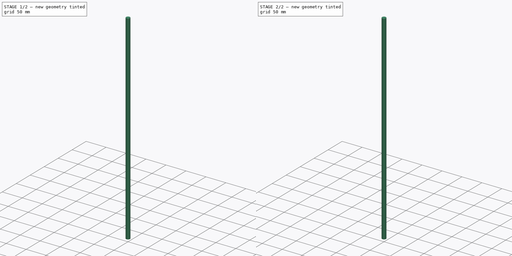
[diagram: build sequence overview — one tinted view per stage of 2, left to right]
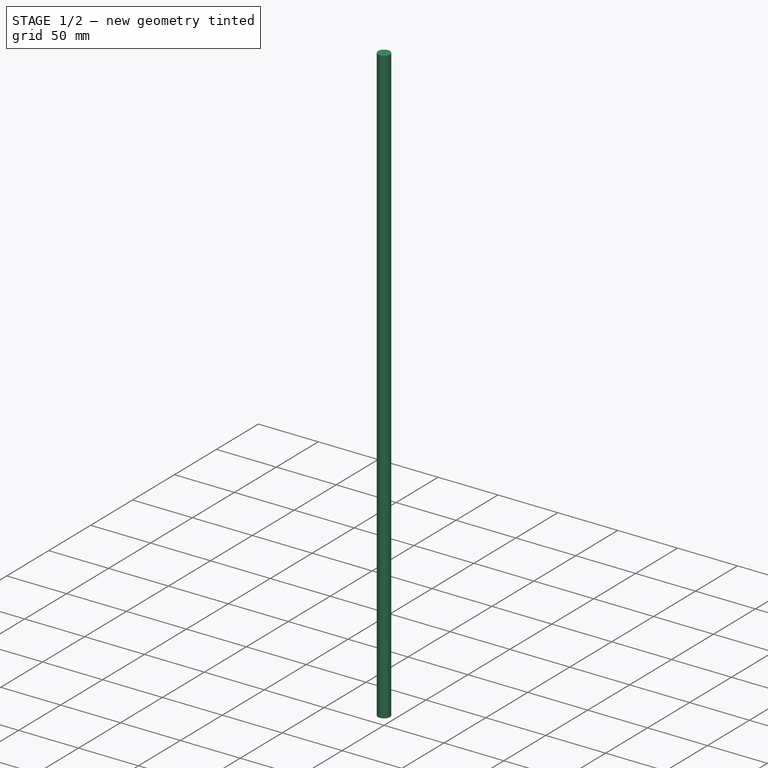
[diagram: stage 1 of 2 — iso view after this stage's code; geometry added in this stage tinted green]
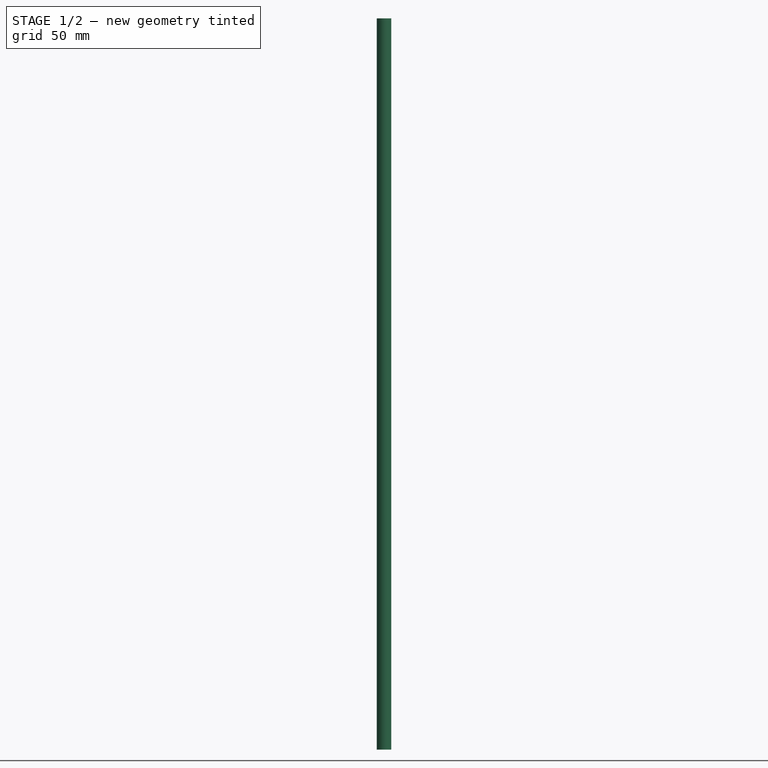
[diagram: stage 1 of 2 — front view after this stage's code; geometry added in this stage tinted green]
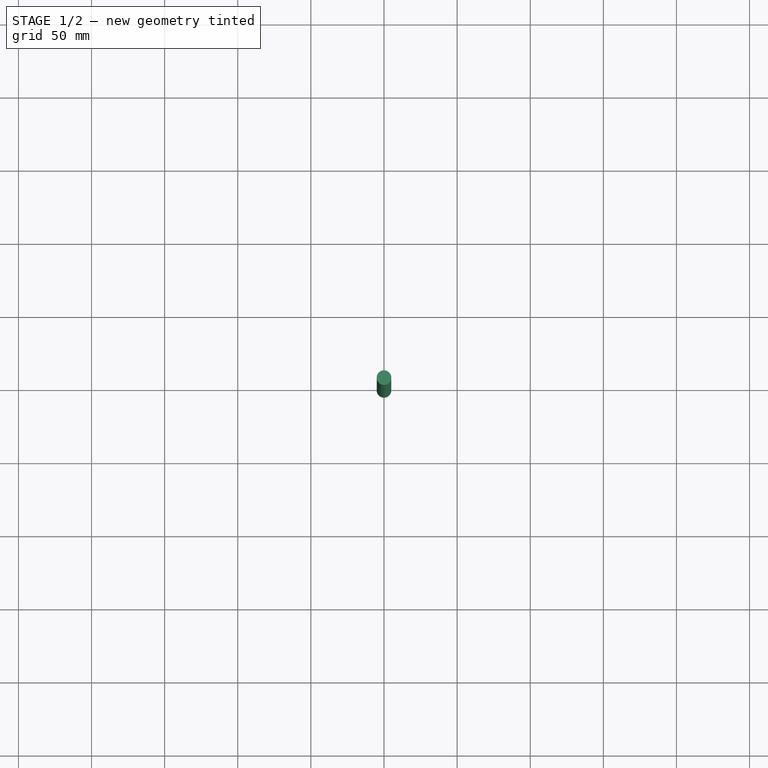
[diagram: stage 1 of 2 — top view after this stage's code; geometry added in this stage tinted green]
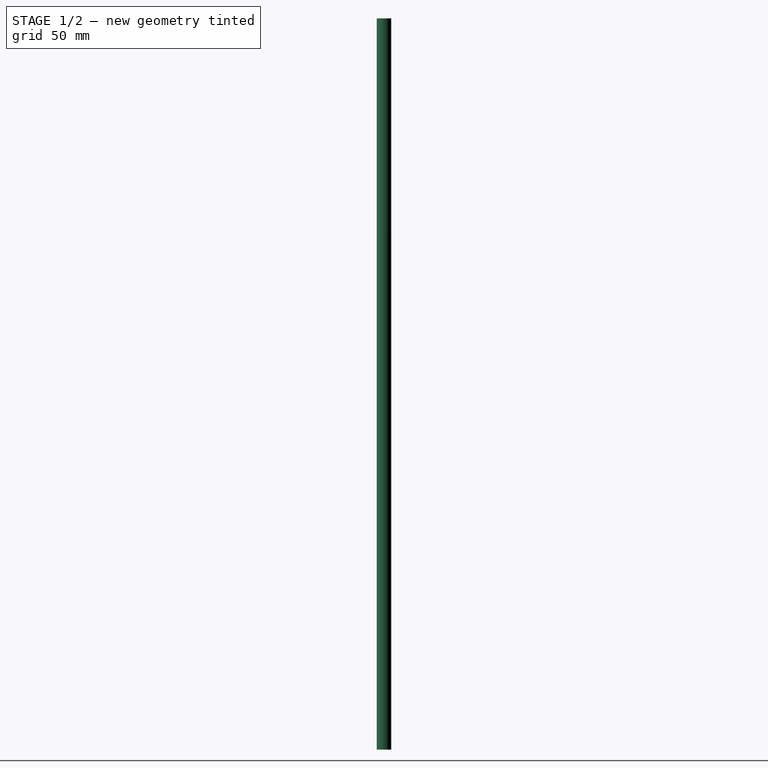
[diagram: stage 1 of 2 — right view after this stage's code; geometry added in this stage tinted green]
FCSTD DOCUMENT  (FreeCAD 0.17R7458 (Git))
Label: 10mmx500mm_rod_v0.1
License: All rights reserved
LicenseURL: http://en.wikipedia.org/wiki/All_rights_reserved
objects: Drawing::FeatureView×14, Drawing::FeatureViewPart×3, Sketcher::SketchObject×1, PartDesign::Pad×1, PartDesign::Chamfer×1, PartDesign::Body×1, Drawing::FeaturePage×1
note: 5 computed .brp shape members not serialized (recipe doc carries the construction recipe); baked Part::Feature solids carry a one-line shape summary decoded from their .brp

FEATURE [Sketcher::SketchObject] Sketch
  MapMode = 5
  Support = -> [XY_Plane]
  sketch-geometry (1):
    g0: Circle CenterX=0 CenterY=0 CenterZ=0 NormalX=0 NormalY=0 NormalZ=1 Radius=5
  constraints (2):
    c: Coincident(g0,g-1)
    c: Radius(g0) = 5
FEATURE [PartDesign::Pad] Pad
  Length = 500
  Length2 = 100
  Profile = -> Sketch
  Type = 0
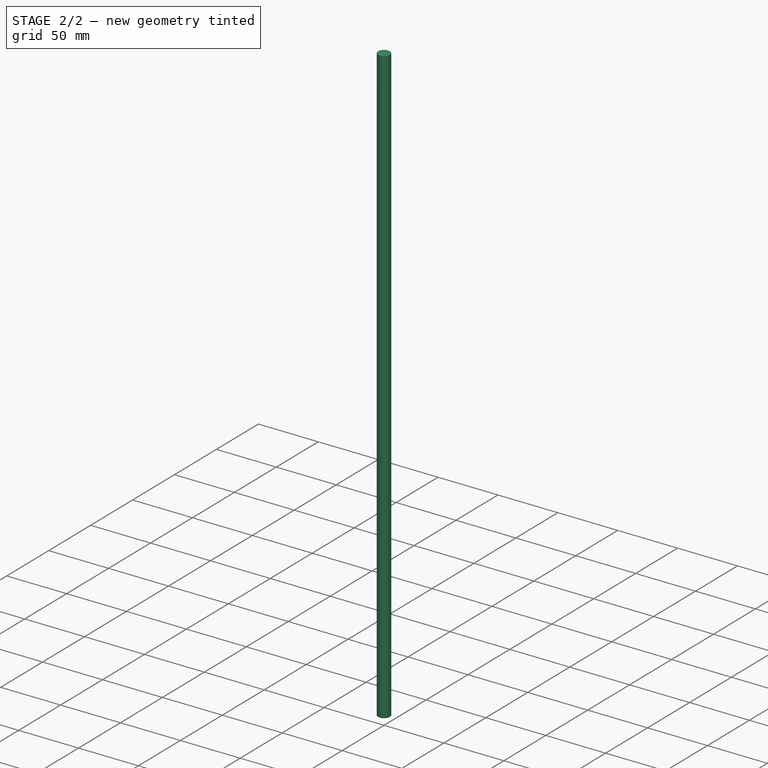
[diagram: stage 2 of 2 — iso view after this stage's code; geometry added in this stage tinted green]
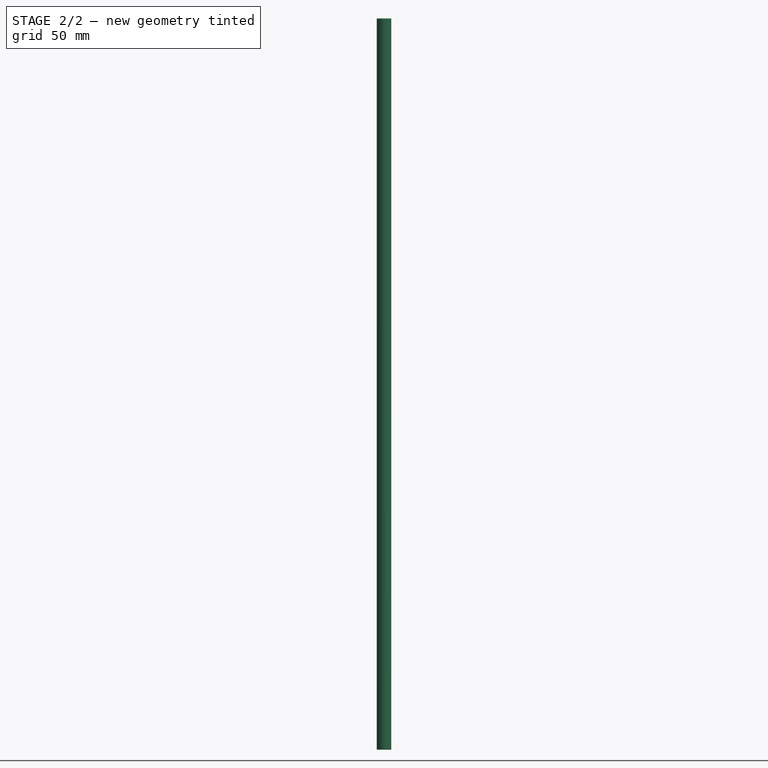
[diagram: stage 2 of 2 — front view after this stage's code; geometry added in this stage tinted green]
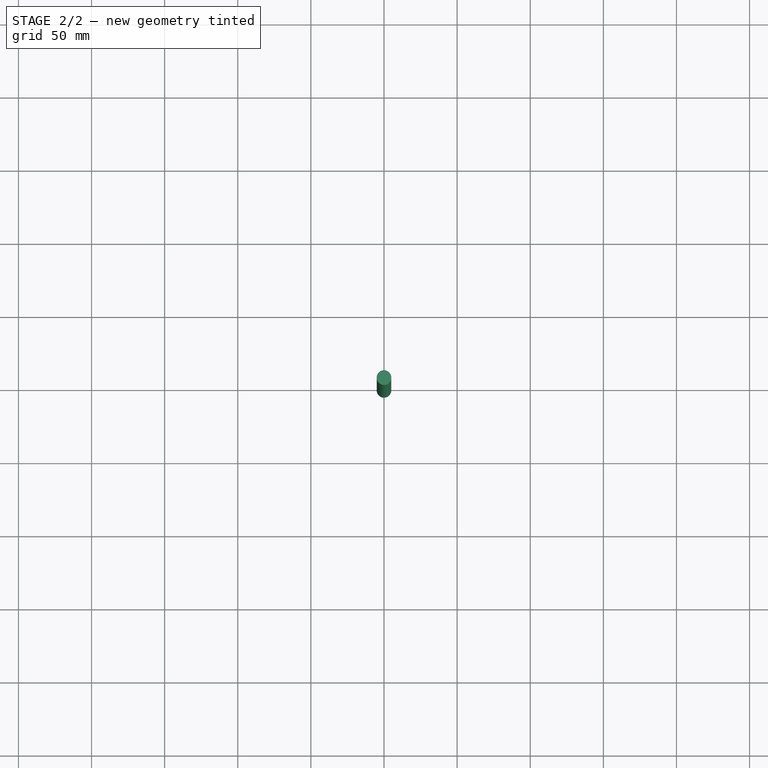
[diagram: stage 2 of 2 — top view after this stage's code; geometry added in this stage tinted green]
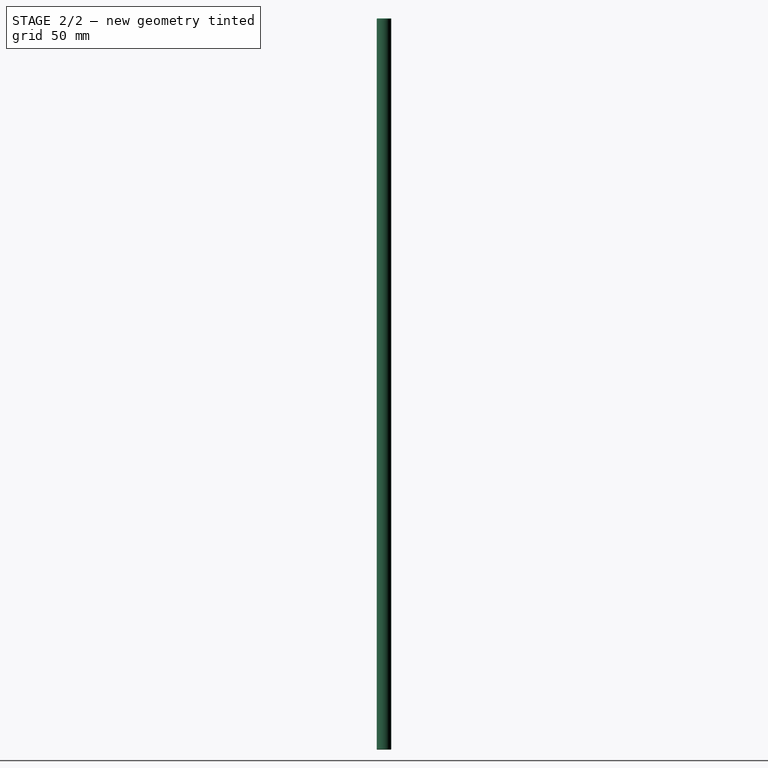
[diagram: stage 2 of 2 — right view after this stage's code; geometry added in this stage tinted green]
FEATURE [PartDesign::Chamfer] Chamfer
  Base = -> Pad [Edge3,Edge2]
  BaseFeature = -> Pad
  Size = 0.3
FEATURE [PartDesign::Body] Body
  Model = -> [Sketch,Pad,Chamfer]
  Origin = -> BodyOrigin
  Tip = -> Chamfer
FEATURE [Drawing::FeatureViewPart] Ortho  label="Ortho_0_0"
  Direction = (1,0,0)
  HiddenWidth = 0.15
  LineWidth = 0.35
  Rotation = -90
  Scale = 0.25
  ShowHiddenLines = false
  ShowSmoothLines = false
  Source = -> Body
  Tolerance = 0.05
  ViewResult = <blob: 2428 chars omitted>
  Visible = true
  X = 78.5
  Y = 179.163
FEATURE [Drawing::FeatureViewPart] Ortho001  label="Ortho_0_1"
  Direction = (0,0,1)
  HiddenWidth = 0.15
  LineWidth = 0.35
  Rotation = 90
  Scale = 0.25
  ShowHiddenLines = false
  ShowSmoothLines = false
  Source = -> Body
  Tolerance = 0.05
  ViewResult = <g id="Ortho_0_1"\n   transform="rotate(90,78.5,32.0768) translate(78.5,32.0768) scale(0.25,0.25)"\n  >\n<g   stroke="rgb(0, 0, 0)"\n   stroke-width="1.4"\n   stroke-linecap="butt"\n   stroke-linejoin="miter"\n   fill="none"\n   transform="scale(1,-1)"\n  >\n<circle cx ="0" cy ="0" r ="5" /><circle cx ="0" cy ="0" r ="4.7" /></g>\n</g>
  Visible = true
  X = 78.5
  Y = 32.0768
FEATURE [Drawing::FeatureViewPart] View
  Direction = (1,2,1)
  HiddenWidth = 0.15
  LineWidth = 0.35
  Rotation = 0
  Scale = 0.25
  ShowHiddenLines = false
  ShowSmoothLines = false
  Source = -> Body
  Tolerance = 0.05
  ViewResult = <g id="View"\n   transform="rotate(0,20,180) translate(20,180) scale(0.25,0.25)"\n  >\n<g   stroke="rgb(0, 0, 0)"\n   stroke-width="1.4"\n   stroke-linecap="butt"\n   stroke-linejoin="miter"\n   fill="none"\n   transform="scale(1,-1)"\n  >\n<path id= "1" d=" M 447.945 -86.3333 L 1.26833 4.84421 " />\n<path id= "2" d=" M 445.945 -96.1313 L -0.731672 -4.95375 " />\n<path id= "3" d=" M -1.68152 -3.94725 L -1.52053 -4.25398 " />\n<path id= "4" d=" M 447.214 -95.5776 L 446.945 -95.7967 " />\n<path id= "5" d=" M 448.895 -87.3398 L 448.734 -87.0331 " />\n</g>\n<g   stroke="rgb(0, 0, 0)"\n   stroke-width="1.4"\n   stroke-linecap="butt"\n   stroke-linejoin="miter"\n   fill="none"\n   transform="scale(1,-1)"\n  >\n<path d="M0.268328 4.50958 A5 2.04124 -101.537 0 1 -1.52053 -4.25398" />\n<path d="M-1.52053 -4.25398 A5 2.04124 -101.537 0 1 -0.731672 -4.95375" />\n<path d="M1.26833 4.84421 A5 2.04124 -101.537 0 1 0.268328 4.50958" />\n<path d="M446.945 -86.668 A5 2.04124 -101.537 0 1 445.945 -96.1313" />\n<path d="M445.945 -96.1313 A5 2.04124 -101.537 0 1 446.945 -95.7967" />\n<path d="M446.945 -95.7967 A5 2.04124 -101.537 0 1 447.082 -95.677" />\n<path d="M448.813 -87.1967 A5 2.04124 -101.537 0 1 448.734 -87.0331" />\n<path d="M448.734 -87.0331 A5 2.04124 -101.537 0 1 447.945 -86.3333" />\n<path d="M447.945 -86.3333 A5 2.04124 -101.537 0 1 446.945 -86.668" />\n<path id= "10" d=" M 0.268328 4.50958 L 0 4.29049 " />\n<path d="M3.33067e-16 4.29049 A4.7 1.91877 -101.537 0 1 -1.68152 -3.94725" />\n<path d="M-1.68152 -3.94725 A4.7 1.91877 -101.537 0 1 -1.59895 -4.09044" />\n<path d="M0.132087 4.38986 A4.7 1.91877 -101.537 0 1 3.33067e-16 4.29049" />\n<path d="M447.214 -86.9966 A4.7 1.91877 -101.537 0 1 447.214 -95.5776" />\n<path d="M447.214 -95.5776 A4.7 1.91877 -101.537 0 1 448.895 -87.3398" />\n<path d="M448.895 -87.3398 A4.7 1.91877 -101.537 0 1 447.214 -86.9966" />\n</g>\n</g>
  Visible = true
  X = 20
  Y = 180
FEATURE [Drawing::FeatureView] dim001
  Rotation = 0
  ViewResult = <g> \n  <line x1="77.330850" y1="179.163000" x2="59.000000" y2="179.163000" style="stroke:rgb(0,0,255);stroke-width:0.20" />\n<line x1="77.330850" y1="54.163000" x2="59.000000" y2="54.163000" style="stroke:rgb(0,0,255);stroke-width:0.20" />\n<line x1="60.000000" y1="179.163000" x2="60.000000" y2="54.163000" style="stroke:rgb(0,0,255);stroke-width:0.20" /> \n  <polygon points="60.000000,54.163000 59.250000,57.163000 60.000000,57.163000 60.750000,57.163000" style="fill:rgb(0,0,255);stroke:rgb(0,0,255);stroke-width:0" /><polygon points="60.000000,179.163000 60.750000,176.163000 60.000000,176.163000 59.250000,176.163000" style="fill:rgb(0,0,255);stroke:rgb(0,0,255);stroke-width:0" /> \n  <text x="59.000000" y="116.663000" font-family="Verdana" font-size="3" fill="rgb(0,0,0)" text-anchor="middle" transform="rotate(-90.000000 59.000000,116.663000)" >500</text> </g>
  Visible = true
  X = 0
  Y = 0
FEATURE [Drawing::FeatureView] dim002
  Rotation = 0
  ViewResult = <g>  <circle cx ="78.500000" cy ="32.076800" r="0.500000" stroke="none" fill="rgb(0,0,255)" /> \n<line x1="85.000000" y1="30.000000" x2="77.380742" y2="32.434412" style="stroke:rgb(0,0,255);stroke-width:0.20" />\n<polygon points="79.619258,31.719188 82.705201,31.520558 82.476939,30.806137 82.248676,30.091717" style="fill:rgb(0,0,255);stroke:rgb(0,0,255);stroke-width:0" />\n<polygon points="77.380742,32.434412 74.294799,32.633042 74.523061,33.347463 74.751324,34.061883" style="fill:rgb(0,0,255);stroke:rgb(0,0,255);stroke-width:0" />\n<line x1="85.000000" y1="30.000000" x2="105.000000" y2="30.000000" style="stroke:rgb(0,0,255);stroke-width:0.20" />\n<text x="95.000000" y="29.000000" font-family="Verdana" font-size="3" fill="rgb(0,0,0)" text-anchor="middle"  >Ø10</text> </g>
  Visible = true
  X = 0
  Y = 0
FEATURE [Drawing::FeatureView] dimText001
  Rotation = 0
  ViewResult = <g > <text x="105.000000" y="29.000000" font-family="Verdana" font-size="2.4" fill="rgb(0,0,0)" text-anchor="end"  >-0.03</text> \n <text x="105.000000" y="26.600000" font-family="Verdana" font-size="2.4" fill="rgb(0,0,0)" text-anchor="end" transform="rotate(0.000000 105.000000,26.600000)" >+0.0</text> </g> 
  Visible = true
  X = 0
  Y = 0
FEATURE [Drawing::FeatureView] centerLines001
  Rotation = 0
  ViewResult = <g transform="scale(0.250000,0.250000)" stroke="rgb(0,0,255)"  stroke-width="1.200000" > <path d="M 314.000000,128.307200 L 314.000000,136.307200 M 314.000000,144.307200 L 314.000000,160.000000 "/>\n<path d="M 314.000000,128.307200 L 322.000000,128.307200 M 330.000000,128.307200 L 340.000000,128.307200 "/>\n<path d="M 314.000000,128.307200 L 314.000000,120.307200 M 314.000000,112.307200 L 314.000000,88.307200 M 314.000000,80.307200 L 314.000000,80.000000 "/>\n<path d="M 314.000000,128.307200 L 306.000000,128.307200 M 298.000000,128.307200 L 280.000000,128.307200 "/> </g> 
  Visible = true
  X = 0
  Y = 0
FEATURE [Drawing::FeatureView] centerLines002
  Rotation = 0
  ViewResult = <g transform="scale(0.250000,0.250000)" stroke="rgb(0,0,255)"  stroke-width="1.200000" > <path d="M 314.000000,466.652000 L 314.000000,458.652000 M 314.000000,450.652000 L 314.000000,426.652000 M 314.000000,418.652000 L 314.000000,410.652000 M 314.000000,402.652000 L 314.000000,378.652000 M 314.000000,370.652000 L 314.000000,362.652000 M 314.000000,354.652000 L 314.000000,330.652000 M 314.000000,322.652000 L 314.000000,314.652000 M 314.000000,306.652000 L 314.000000,282.652000 M 314.000000,274.652000 L 314.000000,266.652000 M 314.000000,258.652000 L 314.000000,234.652000 M 314.000000,226.652000 L 314.000000,218.652000 M 314.000000,210.652000 L 314.000000,200.000000 "/>\n<path d="M 314.000000,466.652000 L 314.000000,474.652000 M 314.000000,482.652000 L 314.000000,506.652000 M 314.000000,514.652000 L 314.000000,522.652000 M 314.000000,530.652000 L 314.000000,554.652000 M 314.000000,562.652000 L 314.000000,570.652000 M 314.000000,578.652000 L 314.000000,602.652000 M 314.000000,610.652000 L 314.000000,618.652000 M 314.000000,626.652000 L 314.000000,650.652000 M 314.000000,658.652000 L 314.000000,666.652000 M 314.000000,674.652000 L 314.000000,698.652000 M 314.000000,706.652000 L 314.000000,714.652000 M 314.000000,722.652000 L 314.000000,740.000000 "/> </g> 
  Visible = true
  X = 0
  Y = 0
FEATURE [Drawing::FeatureView] dimText002
  Rotation = 0
  ViewResult = <g > <text x="59.000000" y="105.000000" font-family="Verdana" font-size="2.4" fill="rgb(0,0,0)" text-anchor="end" transform="rotate(-90.000000 59.000000,105.000000)" >-0.05</text> \n <text x="56.600000" y="105.000000" font-family="Verdana" font-size="2.4" fill="rgb(0,0,0)" text-anchor="end" transform="rotate(-90.000000 56.600000,105.000000)" >+0.05</text> </g> 
  Visible = true
  X = 0
  Y = 0
FEATURE [Drawing::FeatureView] dimLine001
  Rotation = 0
  ViewResult = <g   >\n<line x1="90.000000" y1="130.000000" x2="79.750000" y2="116.663000" style="stroke:rgb(0,0,255);stroke-width:0.20" />\n<polygon points="79.750000,116.663000 80.983431,119.498692 81.578098,119.041667 82.172765,118.584643" style="fill:rgb(0,0,255);stroke:rgb(0,0,255);stroke-width:0" />\n<line x1="90.000000" y1="130.000000" x2="135.000000" y2="130.000000" style="stroke:rgb(0,0,255);stroke-width:0.20" />\n</g> 
  Visible = true
  X = 0
  Y = 0
FEATURE [Drawing::FeatureView] dimText003
  Rotation = 0
  ViewResult = <g> <text x="90.800219" y="128.765468" font-family="inherit" font-size="3" fill="rgb(0,0,0)" text-anchor="inherit" transform="rotate(0.000000 90.800219,128.765468)" >Straightness 0.1mm per 100mm</text> </g>
  Visible = true
  X = 0
  Y = 0
FEATURE [Drawing::FeatureView] dimText004
  Rotation = 0
  ViewResult = <g> <text x="175.000000" y="70.000000" font-family="inherit" font-size="4" fill="rgb(0,0,0)" text-anchor="inherit" transform="rotate(0.000000 175.000000,70.000000)" >Notes</text> </g>
  Visible = true
  X = 0
  Y = 0
FEATURE [Drawing::FeatureView] dimText005
  Rotation = 0
  ViewResult = <g> <text x="165.000000" y="75.000000" font-family="inherit" font-size="3" fill="rgb(0,0,0)" text-anchor="inherit" transform="rotate(0.000000 165.000000,75.000000)" >1. All parts must be RoHS compliant</text> </g>
  Visible = true
  X = 0
  Y = 0
FEATURE [Drawing::FeatureView] dimText006
  Rotation = 0
  ViewResult = <g> <text x="165.000000" y="80.000000" font-family="inherit" font-size="3" fill="rgb(0,0,0)" text-anchor="inherit" transform="rotate(0.000000 165.000000,80.000000)" >2. Material: 304 Stainless Steel</text> </g>
  Visible = true
  X = 0
  Y = 0
FEATURE [Drawing::FeatureView] dimText007
  Rotation = 0
  ViewResult = <g> <text x="165.000000" y="85.000000" font-family="inherit" font-size="3" fill="rgb(0,0,0)" text-anchor="inherit" transform="rotate(0.000000 165.000000,85.000000)" >3. Parts must be free of burrs and sharp edges</text> </g>
  Visible = true
  X = 0
  Y = 0
FEATURE [Drawing::FeatureView] dimText008
  Rotation = 0
  ViewResult = <g> <text x="165.000000" y="90.000000" font-family="inherit" font-size="3" fill="rgb(0,0,0)" text-anchor="inherit" transform="rotate(0.000000 165.000000,90.000000)" >4. Rods must be consistently smooth and not contain pits or gouges</text> </g>
  Visible = true
  X = 0
  Y = 0
FEATURE [Drawing::FeatureView] dimText009
  Rotation = 0
  ViewResult = <g> <text x="165.000000" y="95.000000" font-family="inherit" font-size="3" fill="rgb(0,0,0)" text-anchor="inherit" transform="rotate(0.000000 165.000000,95.000000)" >5. Surface finish Ra 0.3</text> </g>
  Visible = true
  X = 0
  Y = 0
FEATURE [Drawing::FeaturePage] Page
  EditableTexts = bam | 4/25/16 | 1:4 | 10mm Smooth Rod, SS, 500mm | IR | HD-RD0018 | 1 of 1 | See Notes
  Group = -> [Ortho,Ortho001,View,dim001,dim002,dimText001,centerLines001,centerLines002,dimText002,dimLine001,dimText003,dimText004,dimText005,dimText006,dimText007,dimText008,dimText009]
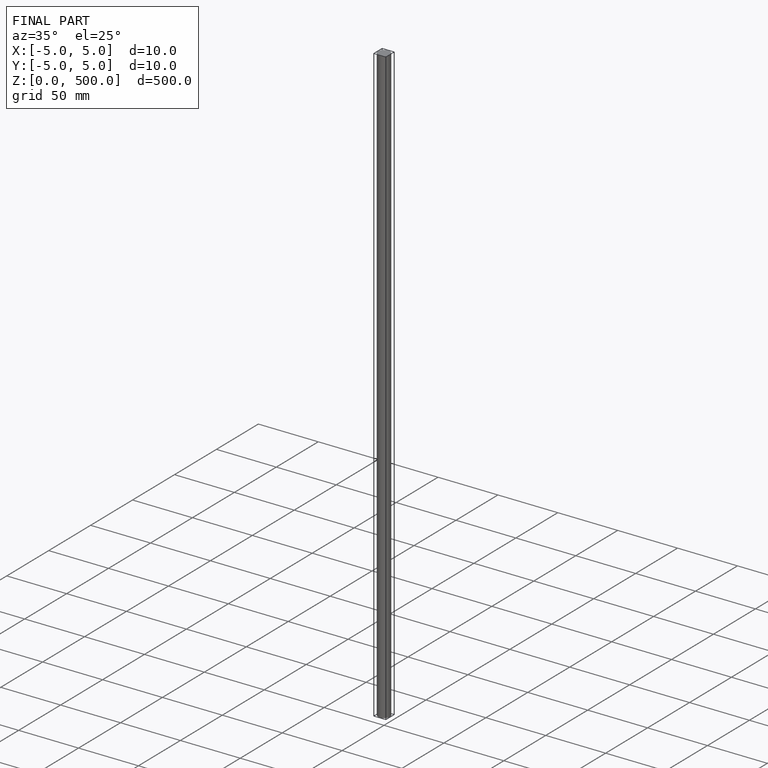
[diagram: finished part — iso view with bounding-box wireframe]
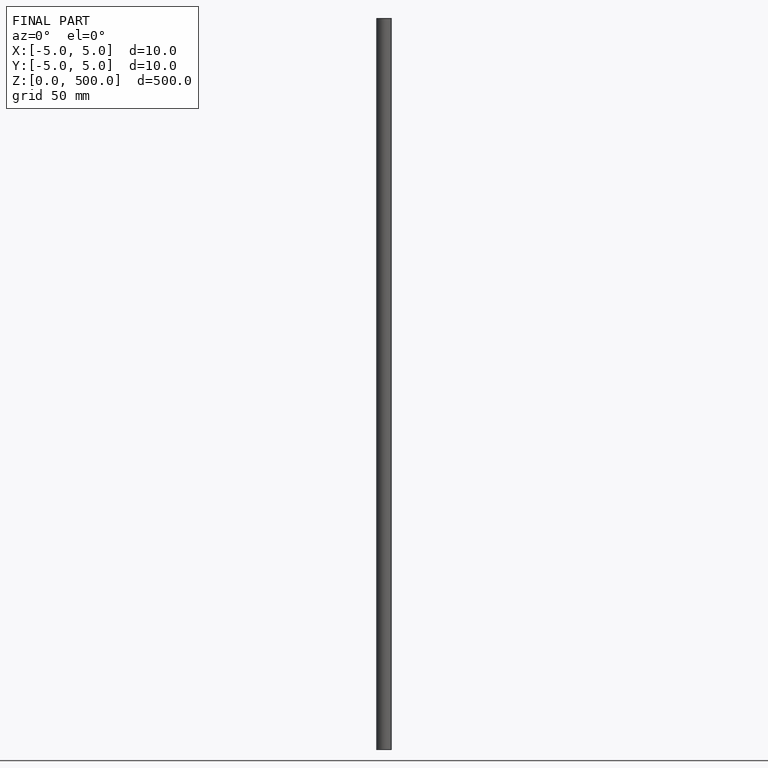
[diagram: finished part — front view with bounding-box wireframe]
